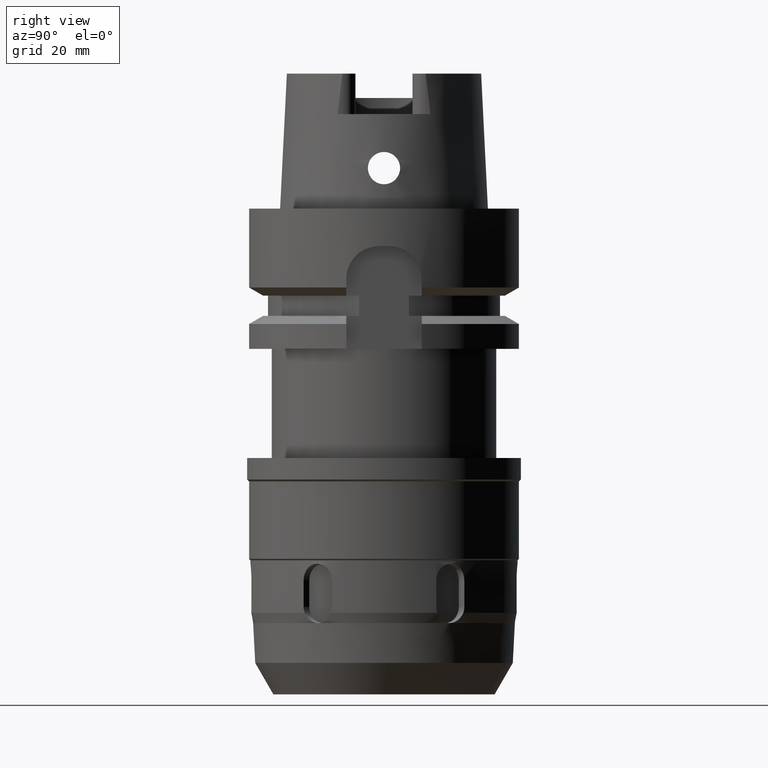
[diagram: clean part render]
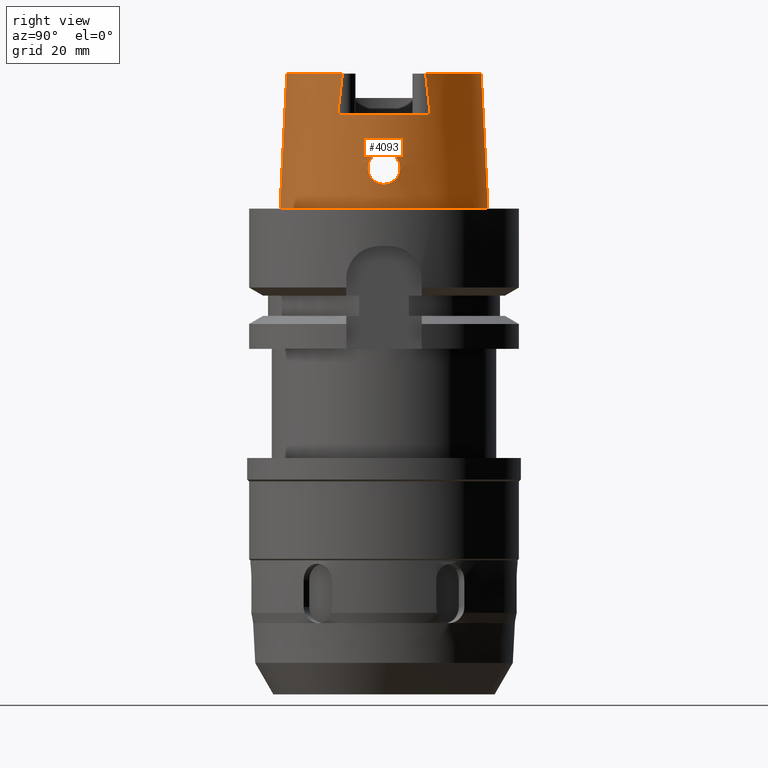
[diagram: same view with one face highlighted and labeled with its STEP entity id]
A machine part, right view. The second image highlights one B-rep face of the part: STEP entity #4093.
In plain terms, the highlighted conical surface has half-angle 2.862 deg.
Its self-contained STEP definition (entity closure, byte-faithful):
#34=CARTESIAN_POINT('',(0.E0,0.E0,2.5E1));
#35=DIRECTION('',(0.E0,0.E0,-1.E0));
#36=DIRECTION('',(0.E0,1.E0,0.E0));
#37=AXIS2_PLACEMENT_3D('',#34,#35,#36);
#193=CARTESIAN_POINT('',(0.E0,0.E0,2.5E1));
#194=DIRECTION('',(0.E0,0.E0,-1.E0));
#195=DIRECTION('',(9.033332415537E-1,-4.289394534245E-1,0.E0));
#196=AXIS2_PLACEMENT_3D('',#193,#194,#195);
#226=DIRECTION('',(0.E0,-4.993752584487E-2,-9.987523434328E-1));
#227=VECTOR('',#226,2.503123037897E1);
#228=CARTESIAN_POINT('',(0.E0,-1.800000182882E1,2.5E1));
#229=LINE('',#228,#227);
#281=CARTESIAN_POINT('',(1.625999683601E1,8.558814265088E0,1.75E1));
#282=CARTESIAN_POINT('',(1.625999683601E1,8.468586080389E0,1.834054207233E1));
#283=CARTESIAN_POINT('',(1.625999970671E1,8.286559188104E0,2.001685620539E1));
#284=CARTESIAN_POINT('',(1.626000577248E1,8.007115334464E0,2.251685466828E1));
#285=CARTESIAN_POINT('',(1.625998672640E1,7.817264990190E0,2.417392292980E1));
#286=CARTESIAN_POINT('',(1.625998672640E1,7.720973243124E0,2.5E1));
#291=DIRECTION('',(0.E0,4.993752584487E-2,-9.987523434328E-1));
#292=VECTOR('',#291,2.503123037897E1);
#293=CARTESIAN_POINT('',(0.E0,1.800000182882E1,2.5E1));
#294=LINE('',#293,#292);
#298=CARTESIAN_POINT('',(1.626000375883E1,-7.720893304650E0,2.5E1));
#299=CARTESIAN_POINT('',(1.626000375883E1,-7.817168497833E0,2.417407645507E1));
#300=CARTESIAN_POINT('',(1.626000017101E1,-8.007234970349E0,2.251724883084E1));
#301=CARTESIAN_POINT('',(1.625999376323E1,-8.286681235081E0,2.001725001647E1));
#302=CARTESIAN_POINT('',(1.626001443847E1,-8.468492170190E0,1.834069670452E1));
#303=CARTESIAN_POINT('',(1.626001443847E1,-8.558738011751E0,1.75E1));
#308=CARTESIAN_POINT('',(1.872500050292E1,-7.067677425116E-14,1.05E1));
#309=CARTESIAN_POINT('',(1.872500050292E1,-2.616930742401E-1,1.05E1));
#310=CARTESIAN_POINT('',(1.871722176016E1,-7.855282213455E-1,1.043111835542E1));
#311=CARTESIAN_POINT('',(1.868622414154E1,-1.519133378156E0,1.012713982571E1));
#312=CARTESIAN_POINT('',(1.864719899691E1,-2.149448494243E0,9.642128508136E0));
#313=CARTESIAN_POINT('',(1.861577449144E1,-2.630322701816E0,9.012910812303E0));
#314=CARTESIAN_POINT('',(1.860667619727E1,-2.931351444014E0,8.282572953532E0));
#315=CARTESIAN_POINT('',(1.862928170857E1,-3.033823834445E0,7.504750727163E0));
#316=CARTESIAN_POINT('',(1.868529129155E1,-2.933335118429E0,6.723950429872E0));
#317=CARTESIAN_POINT('',(1.876803572261E1,-2.632962476479E0,5.991238803907E0));
#318=CARTESIAN_POINT('',(1.886281229077E1,-2.150157902125E0,5.357823148470E0));
#319=CARTESIAN_POINT('',(1.895033128306E1,-1.514640033994E0,4.869891065647E0));
#320=CARTESIAN_POINT('',(1.901078475109E1,-7.799382887779E-1,4.567611548954E0));
#321=CARTESIAN_POINT('',(1.902499995428E1,-2.592351112901E-1,4.5E0));
#322=CARTESIAN_POINT('',(1.902499995428E1,0.E0,4.5E0));
#327=CARTESIAN_POINT('',(1.902499995428E1,0.E0,4.5E0));
#328=CARTESIAN_POINT('',(1.902499995428E1,2.589998627180E-1,4.5E0));
#329=CARTESIAN_POINT('',(1.901077289712E1,7.777917969367E-1,4.567699731614E0));
#330=CARTESIAN_POINT('',(1.895139927437E1,1.503442960281E0,4.864515691822E0));
#331=CARTESIAN_POINT('',(1.886512341743E1,2.136010472923E0,5.344188860966E0));
#332=CARTESIAN_POINT('',(1.877025024685E1,2.623646346723E0,5.974268212983E0));
#333=CARTESIAN_POINT('',(1.868622090134E1,2.931175059528E0,6.712673625940E0));
#334=CARTESIAN_POINT('',(1.862932037402E1,3.034455176819E0,7.501900979339E0));
#335=CARTESIAN_POINT('',(1.860663084730E1,2.931003550793E0,8.284678909863E0));
#336=CARTESIAN_POINT('',(1.861585418251E1,2.629199813165E0,9.014376402610E0));
#337=CARTESIAN_POINT('',(1.864711708949E1,2.150600072912E0,9.640567157582E0));
#338=CARTESIAN_POINT('',(1.868606447038E1,1.522073299674E0,1.012547347901E1));
#339=CARTESIAN_POINT('',(1.871718140177E1,7.874209745394E-1,1.043077401512E1));
#340=CARTESIAN_POINT('',(1.872500050292E1,2.624486671743E-1,1.05E1));
#341=CARTESIAN_POINT('',(1.872500050292E1,-7.067677425116E-14,1.05E1));
#376=CARTESIAN_POINT('',(0.E0,0.E0,1.75E1));
#377=DIRECTION('',(0.E0,0.E0,-1.E0));
#378=DIRECTION('',(8.848979041389E-1,4.657850354515E-1,0.E0));
#379=AXIS2_PLACEMENT_3D('',#376,#377,#378);
#3109=CARTESIAN_POINT('',(0.E0,0.E0,3.979039320257E-13));
#3110=DIRECTION('',(0.E0,0.E0,1.E0));
#3111=DIRECTION('',(0.E0,-1.E0,0.E0));
#3112=AXIS2_PLACEMENT_3D('',#3109,#3110,#3111);
#3419=CARTESIAN_POINT('',(0.E0,1.800000182882E1,2.5E1));
#3420=VERTEX_POINT('',#3419);
#3421=CARTESIAN_POINT('',(1.626E1,7.720910946094E0,2.5E1));
#3422=VERTEX_POINT('',#3421);
#3447=CARTESIAN_POINT('',(1.626000375883E1,-7.720893304650E0,2.5E1));
#3448=VERTEX_POINT('',#3447);
#3449=CARTESIAN_POINT('',(0.E0,-1.800000182882E1,2.5E1));
#3450=VERTEX_POINT('',#3449);
#3471=CARTESIAN_POINT('',(0.E0,-1.924999954280E1,1.882938249764E-13));
#3472=VERTEX_POINT('',#3471);
#3473=CARTESIAN_POINT('',(0.E0,1.924999954280E1,3.979039320257E-13));
#3474=VERTEX_POINT('',#3473);
#3477=CARTESIAN_POINT('',(1.626E1,8.558800558819E0,1.75E1));
#3478=CARTESIAN_POINT('',(1.626E1,-8.558800558819E0,1.75E1));
#3479=VERTEX_POINT('',#3477);
#3480=VERTEX_POINT('',#3478);
#3481=VERTEX_POINT('',#308);
#3482=VERTEX_POINT('',#322);
#4068=CARTESIAN_POINT('',(0.E0,0.E0,1.25E1));
#4069=DIRECTION('',(0.E0,0.E0,-1.E0));
#4070=DIRECTION('',(0.E0,-1.E0,0.E0));
#4071=AXIS2_PLACEMENT_3D('',#4068,#4069,#4070);
#4072=CONICAL_SURFACE('',#4071,1.862500068581E1,2.8624E0);
#4074=ORIENTED_EDGE('',*,*,#4073,.F.);
#4076=ORIENTED_EDGE('',*,*,#4075,.T.);
#4077=ORIENTED_EDGE('',*,*,#3914,.F.);
#4078=ORIENTED_EDGE('',*,*,#4054,.T.);
#4080=ORIENTED_EDGE('',*,*,#4079,.F.);
#4081=ORIENTED_EDGE('',*,*,#4050,.F.);
#4082=ORIENTED_EDGE('',*,*,#4021,.F.);
#4084=ORIENTED_EDGE('',*,*,#4083,.T.);
#4085=EDGE_LOOP('',(#4074,#4076,#4077,#4078,#4080,#4081,#4082,#4084));
#4086=FACE_OUTER_BOUND('',#4085,.F.);
#4088=ORIENTED_EDGE('',*,*,#4087,.T.);
#4090=ORIENTED_EDGE('',*,*,#4089,.T.);
#4091=EDGE_LOOP('',(#4088,#4090));
#4092=FACE_BOUND('',#4091,.F.);
#38=CIRCLE('',#37,1.800000182882E1);
#197=CIRCLE('',#196,1.800000182882E1);
#287=B_SPLINE_CURVE_WITH_KNOTS('',3,(#281,#282,#283,#284,#285,#286),
.UNSPECIFIED.,.F.,.F.,(4,1,1,4),(0.E0,3.333333333333E-1,6.666666666667E-1,1.E0),
.UNSPECIFIED.);
#304=B_SPLINE_CURVE_WITH_KNOTS('',3,(#298,#299,#300,#301,#302,#303),
.UNSPECIFIED.,.F.,.F.,(4,1,1,4),(0.E0,3.333333333333E-1,6.666666666667E-1,1.E0),
.UNSPECIFIED.);
#323=B_SPLINE_CURVE_WITH_KNOTS('',3,(#308,#309,#310,#311,#312,#313,#314,#315,
#316,#317,#318,#319,#320,#321,#322),.UNSPECIFIED.,.F.,.F.,(4,1,1,1,1,1,1,1,1,1,
1,1,4),(0.E0,8.333333333333E-2,1.666666666667E-1,2.5E-1,3.333333333333E-1,
4.166666666667E-1,5.E-1,5.833333333333E-1,6.666666666667E-1,7.5E-1,
8.333333333333E-1,9.166666666667E-1,1.E0),.UNSPECIFIED.);
#342=B_SPLINE_CURVE_WITH_KNOTS('',3,(#327,#328,#329,#330,#331,#332,#333,#334,
#335,#336,#337,#338,#339,#340,#341),.UNSPECIFIED.,.F.,.F.,(4,1,1,1,1,1,1,1,1,1,
1,1,4),(0.E0,8.333333333333E-2,1.666666666667E-1,2.5E-1,3.333333333333E-1,
4.166666666667E-1,5.E-1,5.833333333333E-1,6.666666666667E-1,7.5E-1,
8.333333333333E-1,9.166666666667E-1,1.E0),.UNSPECIFIED.);
#380=CIRCLE('',#379,1.837500114301E1);
#3113=CIRCLE('',#3112,1.924999954280E1);
#3914=EDGE_CURVE('',#3420,#3422,#38,.T.);
#4021=EDGE_CURVE('',#3448,#3450,#197,.T.);
#4050=EDGE_CURVE('',#3450,#3472,#229,.T.);
#4054=EDGE_CURVE('',#3420,#3474,#294,.T.);
#4073=EDGE_CURVE('',#3479,#3480,#380,.T.);
#4075=EDGE_CURVE('',#3479,#3422,#287,.T.);
#4079=EDGE_CURVE('',#3472,#3474,#3113,.T.);
#4083=EDGE_CURVE('',#3448,#3480,#304,.T.);
#4087=EDGE_CURVE('',#3481,#3482,#323,.T.);
#4089=EDGE_CURVE('',#3482,#3481,#342,.T.);
#4093=ADVANCED_FACE('',(#4086,#4092),#4072,.T.);